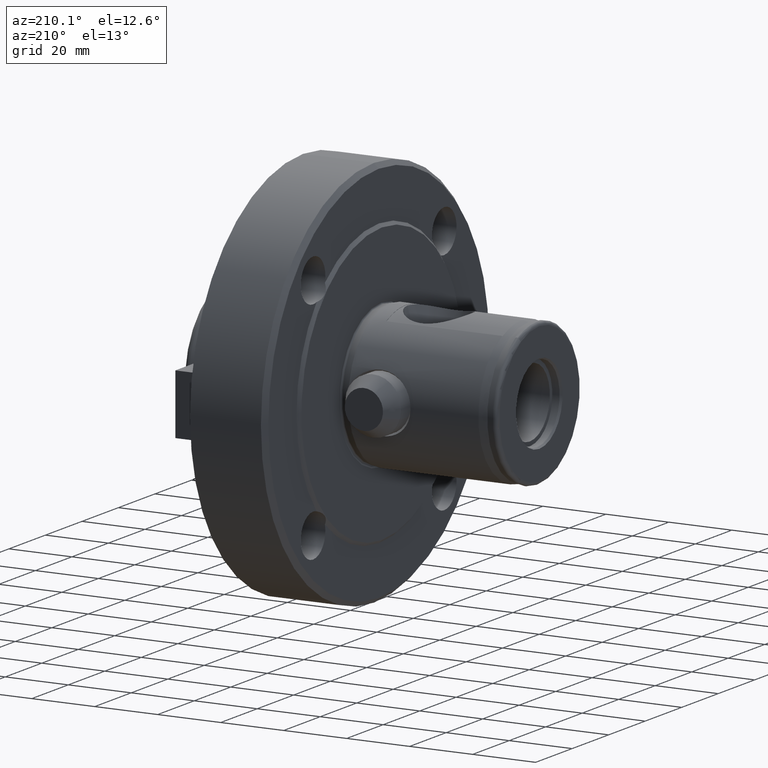
[diagram: clean part render]
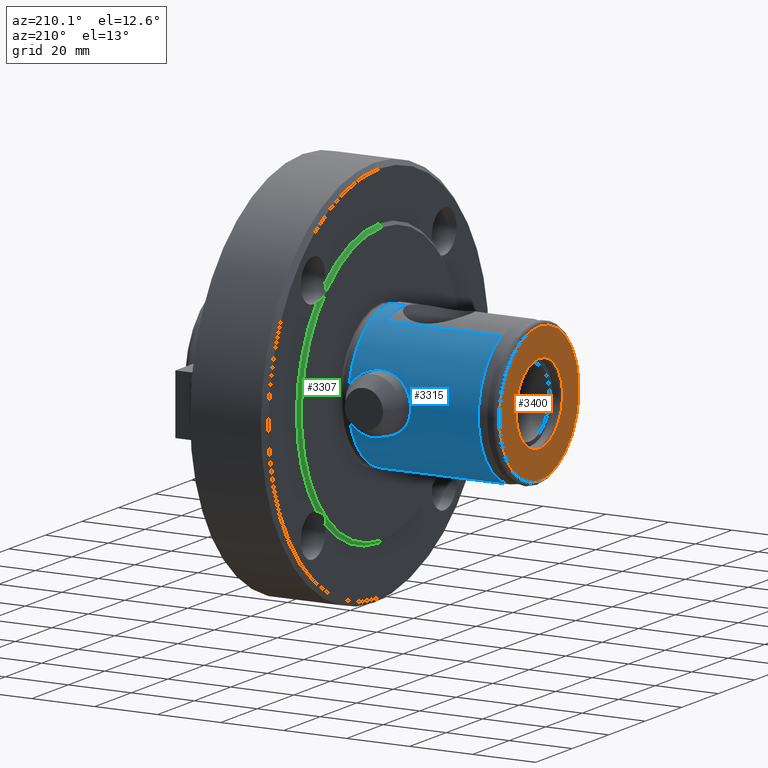
[diagram: same view with three faces highlighted in distinct colors, each labeled with its STEP entity id]
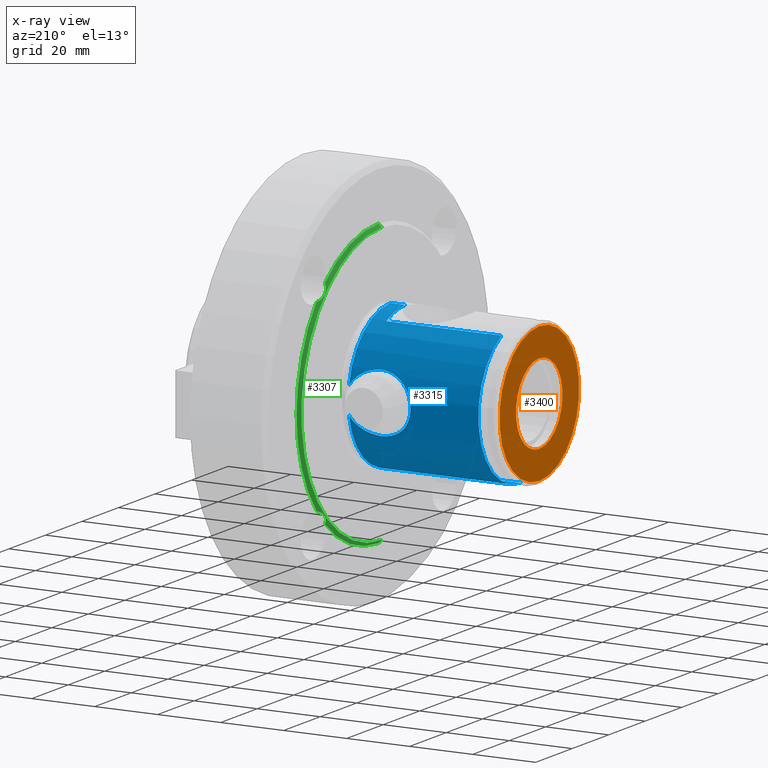
[diagram: x-ray of the same camera — body ghosted, the three highlighted faces saturated]
A machine part, auxiliary view with three faces highlighted in distinct colors.
The next image is the same camera in x-ray (body ghosted, the three faces saturated) — at least one of them is partly hidden behind the body in this view.
Their STEP definitions:

[orange] entity #3400 — the highlighted planar face has unit normal (1, 0, 0).
#29 = EDGE_CURVE ( 'NONE', #4439, #4440, #3831, .T. ) ;
#83 = AXIS2_PLACEMENT_3D ( 'NONE', #2580, #2538, #2611 ) ;
#203 = AXIS2_PLACEMENT_3D ( 'NONE', #3565, #3654, #3658 ) ;
#724 = CARTESIAN_POINT ( 'NONE',  ( 1.111307226797642000E-015, 0.0000000000000000000, 0.0000000000000000000 ) ) ;
#726 = DIRECTION ( 'NONE',  ( -1.000000000000000000, -0.0000000000000000000, -0.0000000000000000000 ) ) ;
#727 = DIRECTION ( 'NONE',  ( 0.0000000000000000000, 0.0000000000000000000, 1.000000000000000000 ) ) ;
#796 = CARTESIAN_POINT ( 'NONE',  ( -2.168404344971008900E-016, 0.0000000000000000000, 0.0000000000000000000 ) ) ;
#821 = DIRECTION ( 'NONE',  ( -1.000000000000000000, -0.0000000000000000000, -0.0000000000000000000 ) ) ;
#822 = DIRECTION ( 'NONE',  ( 0.0000000000000000000, 0.0000000000000000000, 1.000000000000000000 ) ) ;
#892 = CARTESIAN_POINT ( 'NONE',  ( 1.111307226797642000E-015, 0.0000000000000000000, 0.0000000000000000000 ) ) ;
#900 = DIRECTION ( 'NONE',  ( -1.000000000000000000, -0.0000000000000000000, -0.0000000000000000000 ) ) ;
#901 = DIRECTION ( 'NONE',  ( 0.0000000000000000000, 0.0000000000000000000, 1.000000000000000000 ) ) ;
#1316 = ORIENTED_EDGE ( 'NONE', *, *, #5222, .F. ) ;
#1317 = ORIENTED_EDGE ( 'NONE', *, *, #5184, .F. ) ;
#1318 = ORIENTED_EDGE ( 'NONE', *, *, #5200, .T. ) ;
#1319 = ORIENTED_EDGE ( 'NONE', *, *, #29, .T. ) ;
#1820 = CIRCLE ( 'NONE', #4498, 12.75000000000000000 ) ;
#1834 = CIRCLE ( 'NONE', #4499, 21.79999999999998600 ) ;
#1858 = CIRCLE ( 'NONE', #4515, 12.75000000000000000 ) ;
#2538 = DIRECTION ( 'NONE',  ( -1.000000000000000000, -0.0000000000000000000, -0.0000000000000000000 ) ) ;
#2580 = CARTESIAN_POINT ( 'NONE',  ( -2.168404344971008900E-016, 0.0000000000000000000, 0.0000000000000000000 ) ) ;
#2611 = DIRECTION ( 'NONE',  ( 0.0000000000000000000, 0.0000000000000000000, 1.000000000000000000 ) ) ;
#3400 = ADVANCED_FACE ( 'NONE', ( #4063, #4071 ), #3568, .F. ) ;
#3565 = CARTESIAN_POINT ( 'NONE',  ( 4.472333961502705800E-016, 21.79999999999998600, 0.0000000000000000000 ) ) ;
#3568 = PLANE ( 'NONE',  #203 ) ;
#3654 = DIRECTION ( 'NONE',  ( 1.000000000000000000, 0.0000000000000000000, 0.0000000000000000000 ) ) ;
#3658 = DIRECTION ( 'NONE',  ( 0.0000000000000000000, 0.0000000000000000000, -1.000000000000000000 ) ) ;
#3739 = EDGE_LOOP ( 'NONE', ( #1316, #1317 ) ) ;
#3745 = EDGE_LOOP ( 'NONE', ( #1318, #1319 ) ) ;
#3831 = CIRCLE ( 'NONE', #83, 21.79999999999998600 ) ;
#4063 = FACE_BOUND ( 'NONE', #3739, .T. ) ;
#4071 = FACE_OUTER_BOUND ( 'NONE', #3745, .T. ) ;
#4426 = VERTEX_POINT ( 'NONE', #4866 ) ;
#4427 = VERTEX_POINT ( 'NONE', #4855 ) ;
#4439 = VERTEX_POINT ( 'NONE', #4867 ) ;
#4440 = VERTEX_POINT ( 'NONE', #4859 ) ;
#4498 = AXIS2_PLACEMENT_3D ( 'NONE', #724, #726, #727 ) ;
#4499 = AXIS2_PLACEMENT_3D ( 'NONE', #796, #821, #822 ) ;
#4515 = AXIS2_PLACEMENT_3D ( 'NONE', #892, #900, #901 ) ;
#4855 = CARTESIAN_POINT ( 'NONE',  ( 1.111307226797642000E-015, 0.0000000000000000000, 12.75000000000000000 ) ) ;
#4859 = CARTESIAN_POINT ( 'NONE',  ( -2.168404344971008900E-016, 0.0000000000000000000, 21.79999999999998600 ) ) ;
#4866 = CARTESIAN_POINT ( 'NONE',  ( 1.111307226797642000E-015, 1.561424668912875100E-015, -12.75000000000000000 ) ) ;
#4867 = CARTESIAN_POINT ( 'NONE',  ( -2.168404344971008900E-016, 2.742092521891342400E-015, -21.79999999999998600 ) ) ;
#5184 = EDGE_CURVE ( 'NONE', #4426, #4427, #1820, .T. ) ;
#5200 = EDGE_CURVE ( 'NONE', #4440, #4439, #1834, .T. ) ;
#5222 = EDGE_CURVE ( 'NONE', #4427, #4426, #1858, .T. ) ;

[blue] entity #3315 — the highlighted cylindrical surface (partial cylindrical patch) has radius 23 mm, axis along (-1, -0, -0).
#28 = EDGE_CURVE ( 'NONE', #4341, #4429, #2175, .T. ) ;
#30 = EDGE_CURVE ( 'NONE', #4431, #4449, #3830, .T. ) ;
#32 = EDGE_CURVE ( 'NONE', #4430, #4339, #2170, .T. ) ;
#35 = EDGE_CURVE ( 'NONE', #4448, #4446, #3294, .T. ) ;
#36 = EDGE_CURVE ( 'NONE', #4448, #4449, #3840, .T. ) ;
#82 = AXIS2_PLACEMENT_3D ( 'NONE', #2651, #2653, #2652 ) ;
#122 = AXIS2_PLACEMENT_3D ( 'NONE', #2377, #2314, #2318 ) ;
#330 = B_SPLINE_CURVE_WITH_KNOTS ( 'NONE', 3,
 ( #1704, #1682, #1681, #1679, #1678, #1675, #1674, #1673, #1672, #1670, #1669, #1668, #1666, #1664, #1661, #1660, #1657, #1656, #1655, #1653, #1651, #1649, #1648, #1647, #1646, #1645, #1644, #1643, #1641, #1640, #1639, #1638, #1637, #1635, #1634, #1633, #1632, #1631, #1630, #1629, #1627, #1626, #1625, #1624, #1623, #1622, #1621, #1620 ),
 .UNSPECIFIED., .F., .F.,
 ( 4, 2, 2, 2, 2, 2, 2, 2, 2, 2, 2, 2, 2, 2, 2, 2, 2, 2, 2, 2, 2, 2, 2, 4 ),
 ( 0.03912153132853355600, 0.04107657020053784300, 0.04303160907254213000, 0.04400912850854428500, 0.04498664794454643900, 0.04694168681655072600, 0.04791920625255287300, 0.04889672568855502100, 0.05085176456055931500, 0.05182928399656146200, 0.05280680343256360900, 0.05378432286856575700, 0.05476184230456790400, 0.05671688117657219100, 0.05769440061257433800, 0.05867192004857648600, 0.06062695892058078000, 0.06258199779258508100, 0.06453703666458937600, 0.06551455610059150900, 0.06649207553659364200, 0.06844711440859792300, 0.06942463384460007000, 0.07040215328060221700 ),
 .UNSPECIFIED. ) ;
#694 = CARTESIAN_POINT ( 'NONE',  ( 47.31994326666491400, 0.0000000000000000000, 0.0000000000000000000 ) ) ;
#701 = DIRECTION ( 'NONE',  ( -1.000000000000000000, -0.0000000000000000000, -0.0000000000000000000 ) ) ;
#702 = DIRECTION ( 'NONE',  ( 0.0000000000000000000, 0.0000000000000000000, 1.000000000000000000 ) ) ;
#730 = CARTESIAN_POINT ( 'NONE',  ( 47.31994326666491400, 0.0000000000000000000, 0.0000000000000000000 ) ) ;
#733 = DIRECTION ( 'NONE',  ( -1.000000000000000000, -0.0000000000000000000, -0.0000000000000000000 ) ) ;
#734 = DIRECTION ( 'NONE',  ( 0.0000000000000000000, 0.0000000000000000000, 1.000000000000000000 ) ) ;
#834 = CARTESIAN_POINT ( 'NONE',  ( 6.000000000000000000, 0.0000000000000000000, 0.0000000000000000000 ) ) ;
#835 = DIRECTION ( 'NONE',  ( -1.000000000000000000, -0.0000000000000000000, -0.0000000000000000000 ) ) ;
#836 = DIRECTION ( 'NONE',  ( 0.0000000000000000000, 0.0000000000000000000, 1.000000000000000000 ) ) ;
#859 = CARTESIAN_POINT ( 'NONE',  ( 0.0000000000000000000, 2.816687638038911200E-015, -22.99999999999998900 ) ) ;
#860 = DIRECTION ( 'NONE',  ( -1.000000000000000000, -0.0000000000000000000, -0.0000000000000000000 ) ) ;
#1620 = CARTESIAN_POINT ( 'NONE',  ( 37.99999999999999300, 21.02302948290293500, -9.329106675400032200 ) ) ;
#1621 = CARTESIAN_POINT ( 'NONE',  ( 37.67359452623215100, 21.02302948290294200, -9.329106675400034000 ) ) ;
#1622 = CARTESIAN_POINT ( 'NONE',  ( 37.34455777235298500, 21.02913372703620700, -9.315387543624723300 ) ) ;
#1623 = CARTESIAN_POINT ( 'NONE',  ( 36.68931288327314600, 21.05350228358761600, -9.260180991344670400 ) ) ;
#1624 = CARTESIAN_POINT ( 'NONE',  ( 36.36542006270405400, 21.07162731124408600, -9.219004130141479800 ) ) ;
#1625 = CARTESIAN_POINT ( 'NONE',  ( 35.40453974511226700, 21.14249563488240800, -9.055878594101878700 ) ) ;
#1626 = CARTESIAN_POINT ( 'NONE',  ( 34.77826735112156300, 21.21174753174199900, -8.894699071816866400 ) ) ;
#1627 = CARTESIAN_POINT ( 'NONE',  ( 33.86028604128169700, 21.34317373658459600, -8.572188231840257800 ) ) ;
#1629 = CARTESIAN_POINT ( 'NONE',  ( 33.55657580801109700, 21.39182551980534800, -8.450464469267354100 ) ) ;
#1630 = CARTESIAN_POINT ( 'NONE',  ( 32.96651418972812300, 21.49549541229511000, -8.183167222790020300 ) ) ;
#1631 = CARTESIAN_POINT ( 'NONE',  ( 32.67939678798726500, 21.55057538131411500, -8.037468823761367200 ) ) ;
#1632 = CARTESIAN_POINT ( 'NONE',  ( 31.84133868342346200, 21.72318329268426900, -7.564134125396970300 ) ) ;
#1633 = CARTESIAN_POINT ( 'NONE',  ( 31.31462774158478300, 21.84779390441041300, -7.201716864117094600 ) ) ;
#1634 = CARTESIAN_POINT ( 'NONE',  ( 30.32138159036985000, 22.10550031671776200, -6.366920765023841100 ) ) ;
#1635 = CARTESIAN_POINT ( 'NONE',  ( 29.87173431358153800, 22.23418512828621000, -5.908327563428202600 ) ) ;
#1637 = CARTESIAN_POINT ( 'NONE',  ( 29.06862708856776600, 22.47722553618073200, -4.903229049446282200 ) ) ;
#1638 = CARTESIAN_POINT ( 'NONE',  ( 28.71280438712520000, 22.59249961805198800, -4.350349013793513500 ) ) ;
#1639 = CARTESIAN_POINT ( 'NONE',  ( 28.28007468037763100, 22.73722942831550100, -3.479230059584545600 ) ) ;
#1640 = CARTESIAN_POINT ( 'NONE',  ( 28.15186801632154700, 22.78102560529261600, -3.181201570427477400 ) ) ;
#1641 = CARTESIAN_POINT ( 'NONE',  ( 27.92880460163795000, 22.85815343201365100, -2.569045102603404500 ) ) ;
#1643 = CARTESIAN_POINT ( 'NONE',  ( 27.83350975557966900, 22.89164153740824400, -2.252964235021368100 ) ) ;
#1644 = CARTESIAN_POINT ( 'NONE',  ( 27.60479751704353600, 22.97259896412502300, -1.293096020951950000 ) ) ;
#1645 = CARTESIAN_POINT ( 'NONE',  ( 27.52861084715092600, 23.00031651696898600, -0.6450753169664288400 ) ) ;
#1646 = CARTESIAN_POINT ( 'NONE',  ( 27.52993919615654100, 22.99983765961740900, 0.3393201181388690300 ) ) ;
#1647 = CARTESIAN_POINT ( 'NONE',  ( 27.55026809874536300, 22.99249322762191000, 0.6720470948260729400 ) ) ;
#1648 = CARTESIAN_POINT ( 'NONE',  ( 27.62915969025317500, 22.96418897180820600, 1.323788875533435900 ) ) ;
#1649 = CARTESIAN_POINT ( 'NONE',  ( 27.68739548057581600, 22.94334875735827600, 1.643942259989817700 ) ) ;
#1651 = CARTESIAN_POINT ( 'NONE',  ( 27.83947931671895400, 22.88954253136071400, 2.273464550192782600 ) ) ;
#1653 = CARTESIAN_POINT ( 'NONE',  ( 27.93333423163185400, 22.85657347713734900, 2.582831309505722000 ) ) ;
#1655 = CARTESIAN_POINT ( 'NONE',  ( 28.15597701882341400, 22.77961915606984200, 3.191068754125744100 ) ) ;
#1656 = CARTESIAN_POINT ( 'NONE',  ( 28.28527191870844200, 22.73546209714546200, 3.490941170587963200 ) ) ;
#1657 = CARTESIAN_POINT ( 'NONE',  ( 28.72300614365534300, 22.58914781162280500, 4.368298210244891100 ) ) ;
#1660 = CARTESIAN_POINT ( 'NONE',  ( 29.07146015263001000, 22.47637168572174100, 4.906725639546597700 ) ) ;
#1661 = CARTESIAN_POINT ( 'NONE',  ( 29.66911736479820800, 22.29550035252381300, 5.654774460112021100 ) ) ;
#1664 = CARTESIAN_POINT ( 'NONE',  ( 29.88097171409930700, 22.23323036757928200, 5.894079822897678500 ) ) ;
#1666 = CARTESIAN_POINT ( 'NONE',  ( 30.32972208733660200, 22.10642472344307700, 6.353164210319465400 ) ) ;
#1668 = CARTESIAN_POINT ( 'NONE',  ( 30.56806869025394500, 22.04152164685811900, 6.574076907689105000 ) ) ;
#1669 = CARTESIAN_POINT ( 'NONE',  ( 31.30815519338855100, 21.84942086450728000, 7.196628563024516400 ) ) ;
#1670 = CARTESIAN_POINT ( 'NONE',  ( 31.83473859810557400, 21.72467860671368800, 7.559853419409896500 ) ) ;
#1672 = CARTESIAN_POINT ( 'NONE',  ( 32.67223516344359500, 21.55198369335659000, 8.033695286310219800 ) ) ;
#1673 = CARTESIAN_POINT ( 'NONE',  ( 32.95940360873681400, 21.49681667861639800, 8.179702907621992500 ) ) ;
#1674 = CARTESIAN_POINT ( 'NONE',  ( 33.55013040917823700, 21.39288758197375600, 8.447782423573244200 ) ) ;
#1675 = CARTESIAN_POINT ( 'NONE',  ( 33.85417199471006500, 21.34411461546712400, 8.569849382485966100 ) ) ;
#1678 = CARTESIAN_POINT ( 'NONE',  ( 34.77298781264473600, 21.21237417468118000, 8.893220479673779300 ) ) ;
#1679 = CARTESIAN_POINT ( 'NONE',  ( 35.40018018246572500, 21.14289021765644300, 9.054963030212299200 ) ) ;
#1681 = CARTESIAN_POINT ( 'NONE',  ( 36.68401058337281000, 21.04805742750650000, 9.273264838382019100 ) ) ;
#1682 = CARTESIAN_POINT ( 'NONE',  ( 37.34672013531245200, 21.02302948290293500, 9.329106675400032200 ) ) ;
#1704 = CARTESIAN_POINT ( 'NONE',  ( 37.99999999999999300, 21.02302948290293500, 9.329106675400032200 ) ) ;
#1805 = CIRCLE ( 'NONE', #4488, 22.99999999999999300 ) ;
#1825 = CIRCLE ( 'NONE', #4493, 22.99999999999999300 ) ;
#1842 = CIRCLE ( 'NONE', #4504, 22.99999999999998600 ) ;
#1846 = LINE ( 'NONE', #859, #1847 ) ;
#1847 = VECTOR ( 'NONE', #860, 1000.000000000000000 ) ;
#2170 = B_SPLINE_CURVE_WITH_KNOTS ( 'NONE', 3,
 ( #2550, #2571, #2574, #2570, #2575, #2548, #2531, #2532, #2528, #2529, #2530, #2527, #2613, #2612 ),
 .UNSPECIFIED., .F., .F.,
 ( 4, 2, 2, 2, 2, 2, 4 ),
 ( 0.02793456468833157400, 0.02933293551835682000, 0.03073130634838207000, 0.03212967717840731900, 0.03352804800843256500, 0.03632478966848305700, 0.03912153132853355600 ),
 .UNSPECIFIED. ) ;
#2175 = B_SPLINE_CURVE_WITH_KNOTS ( 'NONE', 3,
 ( #4310, #2516, #2639, #2470, #2518, #2555, #2554, #2513, #2526, #2604, #2603, #2553, #2543, #2545, #2547, #2614 ),
 .UNSPECIFIED., .F., .F.,
 ( 4, 2, 2, 2, 2, 2, 2, 4 ),
 ( 0.007805913196052836600, 0.01061031670573302600, 0.01341472021541321700, 0.01481692197025331900, 0.01621912372509342500, 0.01762132547993353100, 0.01832242635735357300, 0.01902352723477361900 ),
 .UNSPECIFIED. ) ;
#2314 = DIRECTION ( 'NONE',  ( -1.000000000000000000, -0.0000000000000000000, -0.0000000000000000000 ) ) ;
#2318 = DIRECTION ( 'NONE',  ( 0.0000000000000000000, 0.0000000000000000000, 1.000000000000000000 ) ) ;
#2377 = CARTESIAN_POINT ( 'NONE',  ( 0.0000000000000000000, 0.0000000000000000000, 0.0000000000000000000 ) ) ;
#2470 = CARTESIAN_POINT ( 'NONE',  ( 41.68883070908899000, 21.26362103410095000, -8.770280433751272800 ) ) ;
#2513 = CARTESIAN_POINT ( 'NONE',  ( 44.92135572386769800, 21.90778923297271800, -7.009171206766819900 ) ) ;
#2516 = CARTESIAN_POINT ( 'NONE',  ( 38.93642399577963400, 21.02302948290293500, -9.329106675400032200 ) ) ;
#2518 = CARTESIAN_POINT ( 'NONE',  ( 42.55276007068971500, 21.39997433124238700, -8.441284336976250900 ) ) ;
#2526 = CARTESIAN_POINT ( 'NONE',  ( 45.27499579696793600, 21.99912407918180400, -6.718999661118417100 ) ) ;
#2527 = CARTESIAN_POINT ( 'NONE',  ( 39.85911555709540000, 21.07286143327008800, 9.219199163713112100 ) ) ;
#2528 = CARTESIAN_POINT ( 'NONE',  ( 43.76967925708884600, 21.64067769323821000, 7.793238074577366200 ) ) ;
#2529 = CARTESIAN_POINT ( 'NONE',  ( 42.54732527097210900, 21.39903855798653600, 8.443643267716145900 ) ) ;
#2530 = CARTESIAN_POINT ( 'NONE',  ( 41.68450828607149100, 21.26305628226036100, 8.771633812662186000 ) ) ;
#2531 = CARTESIAN_POINT ( 'NONE',  ( 44.91604271459752300, 21.90645841561001500, 7.013310844423152400 ) ) ;
#2532 = CARTESIAN_POINT ( 'NONE',  ( 44.16670149911318800, 21.72800725024953600, 7.548056057585812400 ) ) ;
#2543 = CARTESIAN_POINT ( 'NONE',  ( 46.82217198050202700, 22.44524393686850800, -5.024871997415552000 ) ) ;
#2545 = CARTESIAN_POINT ( 'NONE',  ( 47.08279364479418700, 22.52751418627219200, -4.642135129791977700 ) ) ;
#2547 = CARTESIAN_POINT ( 'NONE',  ( 47.20528351920967200, 22.56695579666737900, -4.446760827927814600 ) ) ;
#2548 = CARTESIAN_POINT ( 'NONE',  ( 45.27065326375134200, 21.99796512362721800, 6.722866270260104700 ) ) ;
#2550 = CARTESIAN_POINT ( 'NONE',  ( 47.31994326666645600, 22.60442801480970600, 4.247332589200629700 ) ) ;
#2551 = DIRECTION ( 'NONE',  ( -1.000000000000000000, -0.0000000000000000000, -0.0000000000000000000 ) ) ;
#2553 = CARTESIAN_POINT ( 'NONE',  ( 46.68341790600701600, 22.40223188946745100, -5.212933762859533400 ) ) ;
#2554 = CARTESIAN_POINT ( 'NONE',  ( 44.17171257433486200, 21.72913594905139700, -7.544823456500966000 ) ) ;
#2555 = CARTESIAN_POINT ( 'NONE',  ( 43.77428978980180600, 21.64165904296519800, -7.790515998759055100 ) ) ;
#2570 = CARTESIAN_POINT ( 'NONE',  ( 46.25465311857600900, 22.27232375675969000, 5.751688650573294500 ) ) ;
#2571 = CARTESIAN_POINT ( 'NONE',  ( 47.08955588930877700, 22.52913458138538500, 4.648046439619433200 ) ) ;
#2574 = CARTESIAN_POINT ( 'NONE',  ( 46.82995149347907200, 22.44664710287428700, 5.028554633101019400 ) ) ;
#2575 = CARTESIAN_POINT ( 'NONE',  ( 45.93895781628191300, 22.18057996718181700, 6.093379422584241900 ) ) ;
#2579 = CARTESIAN_POINT ( 'NONE',  ( 0.0000000000000000000, 0.0000000000000000000, 22.99999999999998900 ) ) ;
#2603 = CARTESIAN_POINT ( 'NONE',  ( 46.25094083912525600, 22.27122634616512200, -5.755967791745855600 ) ) ;
#2604 = CARTESIAN_POINT ( 'NONE',  ( 45.93977694400570000, 22.18083165579709300, -6.092382436661053700 ) ) ;
#2610 = CARTESIAN_POINT ( 'NONE',  ( 0.0000000000000000000, 10.50000000000000200, 20.46338192968110900 ) ) ;
#2612 = CARTESIAN_POINT ( 'NONE',  ( 37.99999999999999300, 21.02302948290293500, 9.329106675400032200 ) ) ;
#2613 = CARTESIAN_POINT ( 'NONE',  ( 38.93453641224568400, 21.02302948290293800, 9.329106675400030500 ) ) ;
#2614 = CARTESIAN_POINT ( 'NONE',  ( 47.31994326666491400, 22.60442801480920500, -4.247332589203309400 ) ) ;
#2639 = CARTESIAN_POINT ( 'NONE',  ( 39.86153954190140800, 21.07300003772446200, -9.218897319016278400 ) ) ;
#2649 = DIRECTION ( 'NONE',  ( -1.000000000000000000, -0.0000000000000000000, -0.0000000000000000000 ) ) ;
#2651 = CARTESIAN_POINT ( 'NONE',  ( 42.50000000000000000, 0.0000000000000000000, 0.0000000000000000000 ) ) ;
#2652 = DIRECTION ( 'NONE',  ( 0.0000000000000000000, 0.0000000000000000000, -1.000000000000000000 ) ) ;
#2653 = DIRECTION ( 'NONE',  ( 1.000000000000000000, 0.0000000000000000000, 0.0000000000000000000 ) ) ;
#3217 = ORIENTED_EDGE ( 'NONE', *, *, #5174, .T. ) ;
#3218 = ORIENTED_EDGE ( 'NONE', *, *, #30, .F. ) ;
#3219 = ORIENTED_EDGE ( 'NONE', *, *, #35, .F. ) ;
#3220 = ORIENTED_EDGE ( 'NONE', *, *, #5205, .F. ) ;
#3221 = ORIENTED_EDGE ( 'NONE', *, *, #5187, .T. ) ;
#3222 = ORIENTED_EDGE ( 'NONE', *, *, #36, .T. ) ;
#3223 = ORIENTED_EDGE ( 'NONE', *, *, #5211, .T. ) ;
#3238 = ORIENTED_EDGE ( 'NONE', *, *, #32, .T. ) ;
#3239 = ORIENTED_EDGE ( 'NONE', *, *, #5155, .T. ) ;
#3240 = ORIENTED_EDGE ( 'NONE', *, *, #28, .T. ) ;
#3294 = LINE ( 'NONE', #2610, #3835 ) ;
#3315 = ADVANCED_FACE ( 'NONE', ( #3907 ), #3916, .T. ) ;
#3475 = CARTESIAN_POINT ( 'NONE',  ( 37.99999999999999300, 21.02302948290293500, 9.329106675400032200 ) ) ;
#3496 = CARTESIAN_POINT ( 'NONE',  ( 37.99999999999999300, 21.02302948290293500, -9.329106675400032200 ) ) ;
#3732 = EDGE_LOOP ( 'NONE', ( #3221, #3223, #3220, #3219, #3222, #3218, #3217, #3238, #3239, #3240 ) ) ;
#3830 = LINE ( 'NONE', #2579, #3832 ) ;
#3832 = VECTOR ( 'NONE', #2551, 1000.000000000000000 ) ;
#3835 = VECTOR ( 'NONE', #2649, 1000.000000000000000 ) ;
#3840 = CIRCLE ( 'NONE', #82, 22.99999999999998900 ) ;
#3907 = FACE_OUTER_BOUND ( 'NONE', #3732, .T. ) ;
#3916 = CYLINDRICAL_SURFACE ( 'NONE', #122, 22.99999999999998900 ) ;
#4310 = CARTESIAN_POINT ( 'NONE',  ( 37.99999999999999300, 21.02302948290293500, -9.329106675400032200 ) ) ;
#4339 = VERTEX_POINT ( 'NONE', #3475 ) ;
#4341 = VERTEX_POINT ( 'NONE', #3496 ) ;
#4428 = VERTEX_POINT ( 'NONE', #4847 ) ;
#4429 = VERTEX_POINT ( 'NONE', #4861 ) ;
#4430 = VERTEX_POINT ( 'NONE', #4914 ) ;
#4431 = VERTEX_POINT ( 'NONE', #4857 ) ;
#4446 = VERTEX_POINT ( 'NONE', #4918 ) ;
#4447 = VERTEX_POINT ( 'NONE', #4922 ) ;
#4448 = VERTEX_POINT ( 'NONE', #4921 ) ;
#4449 = VERTEX_POINT ( 'NONE', #4930 ) ;
#4488 = AXIS2_PLACEMENT_3D ( 'NONE', #694, #701, #702 ) ;
#4493 = AXIS2_PLACEMENT_3D ( 'NONE', #730, #733, #734 ) ;
#4504 = AXIS2_PLACEMENT_3D ( 'NONE', #834, #835, #836 ) ;
#4847 = CARTESIAN_POINT ( 'NONE',  ( 47.31994326666491400, 2.816687638038912000E-015, -22.99999999999999300 ) ) ;
#4857 = CARTESIAN_POINT ( 'NONE',  ( 47.31994326666491400, 0.0000000000000000000, 22.99999999999999300 ) ) ;
#4861 = CARTESIAN_POINT ( 'NONE',  ( 47.31994326666491400, 22.60442801480920500, -4.247332589203309400 ) ) ;
#4914 = CARTESIAN_POINT ( 'NONE',  ( 47.31994326666645600, 22.60442801480970600, 4.247332589200629700 ) ) ;
#4918 = CARTESIAN_POINT ( 'NONE',  ( 6.000000000000000000, 10.50000000000000200, 20.46338192968110500 ) ) ;
#4921 = CARTESIAN_POINT ( 'NONE',  ( 42.50000000000000000, 10.50000000000000200, 20.46338192968110900 ) ) ;
#4922 = CARTESIAN_POINT ( 'NONE',  ( 6.000000000000000000, 2.816687638038911200E-015, -22.99999999999998600 ) ) ;
#4930 = CARTESIAN_POINT ( 'NONE',  ( 42.50000000000000000, 0.0000000000000000000, 22.99999999999998900 ) ) ;
#5155 = EDGE_CURVE ( 'NONE', #4339, #4341, #330, .T. ) ;
#5174 = EDGE_CURVE ( 'NONE', #4431, #4430, #1805, .T. ) ;
#5187 = EDGE_CURVE ( 'NONE', #4429, #4428, #1825, .T. ) ;
#5205 = EDGE_CURVE ( 'NONE', #4446, #4447, #1842, .T. ) ;
#5211 = EDGE_CURVE ( 'NONE', #4428, #4447, #1846, .T. ) ;

[green] entity #3307 — the highlighted conical surface has half-angle 45 deg.
#114 = AXIS2_PLACEMENT_3D ( 'NONE', #2334, #2339, #2344 ) ;
#318 = B_SPLINE_CURVE_WITH_KNOTS ( 'NONE', 3,
 ( #4696, #4699, #4700, #4701, #4774, #4770, #4771, #4766, #4769, #4772, #4684, #4707, #4705, #4706, #4703, #4704 ),
 .UNSPECIFIED., .F., .F.,
 ( 4, 2, 2, 2, 2, 2, 2, 4 ),
 ( 4.152768628547324700E-007, 0.001767223248811599000, 0.002650627234785977100, 0.003534031220760355700, 0.004417435206734733400, 0.005300839192709112500, 0.006184243178683490600, 0.007067647164657868800 ),
 .UNSPECIFIED. ) ;
#319 = B_SPLINE_CURVE_WITH_KNOTS ( 'NONE', 3,
 ( #4749, #4745, #4744, #4743, #4742, #4741, #4740, #4739, #4709, #2850, #2855, #2856, #2852, #2853, #2851, #2854 ),
 .UNSPECIFIED., .F., .F.,
 ( 4, 2, 2, 2, 2, 2, 2, 4 ),
 ( 4.152768627952405300E-007, 0.001767223248811559500, 0.002650627234785930700, 0.003534031220760301900, 0.004417435206734672700, 0.005300839192709043900, 0.006184243178683415100, 0.007067647164657786400 ),
 .UNSPECIFIED. ) ;
#618 = CARTESIAN_POINT ( 'NONE',  ( 50.99999999999999300, 0.0000000000000000000, 0.0000000000000000000 ) ) ;
#627 = DIRECTION ( 'NONE',  ( 1.000000000000000000, 0.0000000000000000000, 0.0000000000000000000 ) ) ;
#628 = DIRECTION ( 'NONE',  ( 0.0000000000000000000, 0.0000000000000000000, -1.000000000000000000 ) ) ;
#697 = CARTESIAN_POINT ( 'NONE',  ( 50.99999999999999300, 0.0000000000000000000, 0.0000000000000000000 ) ) ;
#698 = CARTESIAN_POINT ( 'NONE',  ( 49.99999999999998600, 0.0000000000000000000, 0.0000000000000000000 ) ) ;
#699 = DIRECTION ( 'NONE',  ( 1.000000000000000000, 0.0000000000000000000, 0.0000000000000000000 ) ) ;
#700 = DIRECTION ( 'NONE',  ( 0.0000000000000000000, 0.0000000000000000000, -1.000000000000000000 ) ) ;
#703 = CARTESIAN_POINT ( 'NONE',  ( 50.99999999999999300, 5.510910596163089600E-015, 45.00000000000000000 ) ) ;
#704 = DIRECTION ( 'NONE',  ( 0.7071067811865475700, 8.659560562354931600E-017, 0.7071067811865474600 ) ) ;
#706 = DIRECTION ( 'NONE',  ( -1.000000000000000000, -0.0000000000000000000, -0.0000000000000000000 ) ) ;
#707 = DIRECTION ( 'NONE',  ( 0.0000000000000000000, 0.0000000000000000000, 1.000000000000000000 ) ) ;
#708 = CARTESIAN_POINT ( 'NONE',  ( 50.99999999999999300, 0.0000000000000000000, 0.0000000000000000000 ) ) ;
#709 = CARTESIAN_POINT ( 'NONE',  ( 50.99999999999999300, 0.0000000000000000000, -45.00000000000000000 ) ) ;
#710 = DIRECTION ( 'NONE',  ( 1.000000000000000000, 0.0000000000000000000, 0.0000000000000000000 ) ) ;
#711 = DIRECTION ( 'NONE',  ( 0.0000000000000000000, 0.0000000000000000000, -1.000000000000000000 ) ) ;
#715 = DIRECTION ( 'NONE',  ( 0.7071067811865475700, 0.0000000000000000000, -0.7071067811865474600 ) ) ;
#1794 = CIRCLE ( 'NONE', #4489, 44.99999999999999300 ) ;
#1801 = LINE ( 'NONE', #703, #1802 ) ;
#1802 = VECTOR ( 'NONE', #704, 1000.000000000000000 ) ;
#1803 = CIRCLE ( 'NONE', #4491, 44.99999999999999300 ) ;
#1804 = VECTOR ( 'NONE', #715, 1000.000000000000000 ) ;
#1806 = CIRCLE ( 'NONE', #4494, 44.00000000000000000 ) ;
#1808 = CIRCLE ( 'NONE', #4492, 44.99999999999999300 ) ;
#1809 = LINE ( 'NONE', #709, #1804 ) ;
#2334 = CARTESIAN_POINT ( 'NONE',  ( 50.99999999999999300, 0.0000000000000000000, 0.0000000000000000000 ) ) ;
#2339 = DIRECTION ( 'NONE',  ( 1.000000000000000000, 0.0000000000000000000, 0.0000000000000000000 ) ) ;
#2344 = DIRECTION ( 'NONE',  ( 0.0000000000000000000, 0.0000000000000000000, -1.000000000000000000 ) ) ;
#2850 = CARTESIAN_POINT ( 'NONE',  ( 50.16285393181049600, 32.04033741235208800, 30.39502028269930600 ) ) ;
#2851 = CARTESIAN_POINT ( 'NONE',  ( 50.85801781550968300, 33.77745476082026200, 29.51903962575747200 ) ) ;
#2852 = CARTESIAN_POINT ( 'NONE',  ( 50.49573924767410200, 33.02323859997982700, 29.82276518376886200 ) ) ;
#2853 = CARTESIAN_POINT ( 'NONE',  ( 50.72704639800976200, 33.52425180305834800, 29.60901923697008800 ) ) ;
#2854 = CARTESIAN_POINT ( 'NONE',  ( 50.99999999999999300, 34.02875967504087400, 29.44560264247126800 ) ) ;
#2855 = CARTESIAN_POINT ( 'NONE',  ( 50.22825043332585400, 32.28322986424058200, 30.23251814986294800 ) ) ;
#2856 = CARTESIAN_POINT ( 'NONE',  ( 50.39500918637175900, 32.77495618778861100, 29.94650288936537300 ) ) ;
#3208 = ORIENTED_EDGE ( 'NONE', *, *, #5176, .F. ) ;
#3241 = ORIENTED_EDGE ( 'NONE', *, *, #5179, .F. ) ;
#3274 = ORIENTED_EDGE ( 'NONE', *, *, #5177, .F. ) ;
#3276 = ORIENTED_EDGE ( 'NONE', *, *, #5024, .T. ) ;
#3277 = ORIENTED_EDGE ( 'NONE', *, *, #5175, .T. ) ;
#3278 = ORIENTED_EDGE ( 'NONE', *, *, #5061, .T. ) ;
#3279 = ORIENTED_EDGE ( 'NONE', *, *, #5173, .F. ) ;
#3280 = ORIENTED_EDGE ( 'NONE', *, *, #5165, .F. ) ;
#3307 = ADVANCED_FACE ( 'NONE', ( #3885 ), #3900, .T. ) ;
#3456 = CARTESIAN_POINT ( 'NONE',  ( 49.99999999999998600, 0.0000000000000000000, -44.00000000000000000 ) ) ;
#3724 = EDGE_LOOP ( 'NONE', ( #3208, #3277, #3280, #3278, #3279, #3276, #3274, #3241 ) ) ;
#3885 = FACE_OUTER_BOUND ( 'NONE', #3724, .T. ) ;
#3900 = CONICAL_SURFACE ( 'NONE', #114, 45.00000000000000000, 0.7853981633974482800 ) ;
#4309 = VERTEX_POINT ( 'NONE', #3456 ) ;
#4369 = VERTEX_POINT ( 'NONE', #4961 ) ;
#4371 = VERTEX_POINT ( 'NONE', #4962 ) ;
#4389 = VERTEX_POINT ( 'NONE', #4960 ) ;
#4391 = VERTEX_POINT ( 'NONE', #4969 ) ;
#4400 = VERTEX_POINT ( 'NONE', #4879 ) ;
#4420 = VERTEX_POINT ( 'NONE', #4909 ) ;
#4421 = VERTEX_POINT ( 'NONE', #4910 ) ;
#4489 = AXIS2_PLACEMENT_3D ( 'NONE', #618, #627, #628 ) ;
#4491 = AXIS2_PLACEMENT_3D ( 'NONE', #697, #699, #700 ) ;
#4492 = AXIS2_PLACEMENT_3D ( 'NONE', #708, #710, #711 ) ;
#4494 = AXIS2_PLACEMENT_3D ( 'NONE', #698, #706, #707 ) ;
#4684 = CARTESIAN_POINT ( 'NONE',  ( 50.22825043332586100, 30.23251814986293700, -32.28322986424058200 ) ) ;
#4696 = CARTESIAN_POINT ( 'NONE',  ( 50.99999999999999300, 34.02875967504054700, -29.44560264247164800 ) ) ;
#4699 = CARTESIAN_POINT ( 'NONE',  ( 50.71637637079584900, 33.52675294747847800, -29.59230036931818100 ) ) ;
#4700 = CARTESIAN_POINT ( 'NONE',  ( 50.48076897899657900, 33.02681861064800700, -29.80043850240294400 ) ) ;
#4701 = CARTESIAN_POINT ( 'NONE',  ( 50.22899787948852400, 32.28593797850516700, -30.23072907903872100 ) ) ;
#4703 = CARTESIAN_POINT ( 'NONE',  ( 50.85801781550969700, 29.51903962575747200, -33.77745476082026200 ) ) ;
#4704 = CARTESIAN_POINT ( 'NONE',  ( 50.99999999999999300, 29.44560264247126800, -34.02875967504087400 ) ) ;
#4705 = CARTESIAN_POINT ( 'NONE',  ( 50.49573924767408100, 29.82276518376885100, -33.02323859997982700 ) ) ;
#4706 = CARTESIAN_POINT ( 'NONE',  ( 50.72704639800974000, 29.60901923697007700, -33.52425180305834800 ) ) ;
#4707 = CARTESIAN_POINT ( 'NONE',  ( 50.39500918637176600, 29.94650288936534800, -32.77495618778861100 ) ) ;
#4709 = CARTESIAN_POINT ( 'NONE',  ( 50.07594322336308300, 31.57885604189058500, 30.74975502659035700 ) ) ;
#4739 = CARTESIAN_POINT ( 'NONE',  ( 50.05352227752944600, 31.35788616264707000, 30.94324715860521000 ) ) ;
#4740 = CARTESIAN_POINT ( 'NONE',  ( 50.05400150749392900, 30.93688615063841900, 31.36483490114353500 ) ) ;
#4741 = CARTESIAN_POINT ( 'NONE',  ( 50.07710185779536300, 30.74280963185135800, 31.58722277557391700 ) ) ;
#4742 = CARTESIAN_POINT ( 'NONE',  ( 50.16459172260590500, 30.39021864850235500, 32.04727525191825100 ) ) ;
#4743 = CARTESIAN_POINT ( 'NONE',  ( 50.22899787948850300, 30.23072907903872100, 32.28593797850516700 ) ) ;
#4744 = CARTESIAN_POINT ( 'NONE',  ( 50.48076897899659300, 29.80043850240296500, 33.02681861064801400 ) ) ;
#4745 = CARTESIAN_POINT ( 'NONE',  ( 50.71637637079586400, 29.59230036931819900, 33.52675294747850600 ) ) ;
#4749 = CARTESIAN_POINT ( 'NONE',  ( 50.99999999999999300, 29.44560264247164800, 34.02875967504054700 ) ) ;
#4766 = CARTESIAN_POINT ( 'NONE',  ( 50.05352227752944600, 30.94324715860520700, -31.35788616264706300 ) ) ;
#4769 = CARTESIAN_POINT ( 'NONE',  ( 50.07594322336306900, 30.74975502659035000, -31.57885604189057800 ) ) ;
#4770 = CARTESIAN_POINT ( 'NONE',  ( 50.07710185779534800, 31.58722277557391000, -30.74280963185135100 ) ) ;
#4771 = CARTESIAN_POINT ( 'NONE',  ( 50.05400150749391500, 31.36483490114352800, -30.93688615063841500 ) ) ;
#4772 = CARTESIAN_POINT ( 'NONE',  ( 50.16285393181047400, 30.39502028269930300, -32.04033741235208100 ) ) ;
#4774 = CARTESIAN_POINT ( 'NONE',  ( 50.16459172260590500, 32.04727525191824400, -30.39021864850235100 ) ) ;
#4879 = CARTESIAN_POINT ( 'NONE',  ( 49.99999999999998600, 5.449678256205722000E-015, 44.00000000000000000 ) ) ;
#4909 = CARTESIAN_POINT ( 'NONE',  ( 50.99999999999999300, 5.510910596163089600E-015, 45.00000000000000000 ) ) ;
#4910 = CARTESIAN_POINT ( 'NONE',  ( 50.99999999999999300, 0.0000000000000000000, -45.00000000000000000 ) ) ;
#4960 = CARTESIAN_POINT ( 'NONE',  ( 50.99999999999999300, 29.44560264247164800, 34.02875967504054700 ) ) ;
#4961 = CARTESIAN_POINT ( 'NONE',  ( 50.99999999999999300, 34.02875967504054700, -29.44560264247164800 ) ) ;
#4962 = CARTESIAN_POINT ( 'NONE',  ( 50.99999999999999300, 29.44560264247126800, -34.02875967504087400 ) ) ;
#4969 = CARTESIAN_POINT ( 'NONE',  ( 50.99999999999999300, 34.02875967504087400, 29.44560264247126800 ) ) ;
#5024 = EDGE_CURVE ( 'NONE', #4369, #4371, #318, .T. ) ;
#5061 = EDGE_CURVE ( 'NONE', #4389, #4391, #319, .T. ) ;
#5165 = EDGE_CURVE ( 'NONE', #4389, #4420, #1794, .T. ) ;
#5173 = EDGE_CURVE ( 'NONE', #4369, #4391, #1803, .T. ) ;
#5175 = EDGE_CURVE ( 'NONE', #4400, #4420, #1801, .T. ) ;
#5176 = EDGE_CURVE ( 'NONE', #4400, #4309, #1806, .T. ) ;
#5177 = EDGE_CURVE ( 'NONE', #4421, #4371, #1808, .T. ) ;
#5179 = EDGE_CURVE ( 'NONE', #4309, #4421, #1809, .T. ) ;